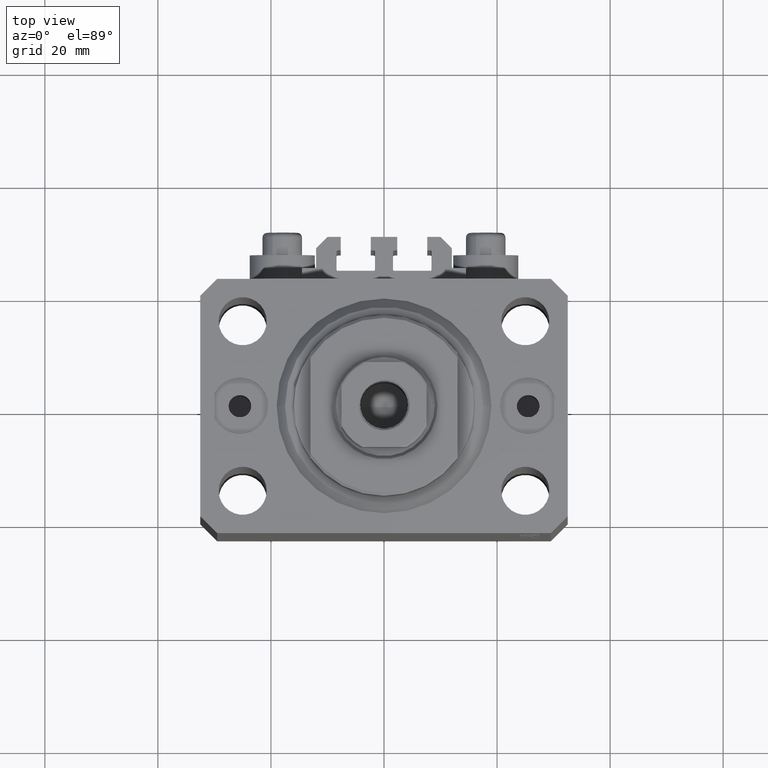
[diagram: clean part render]
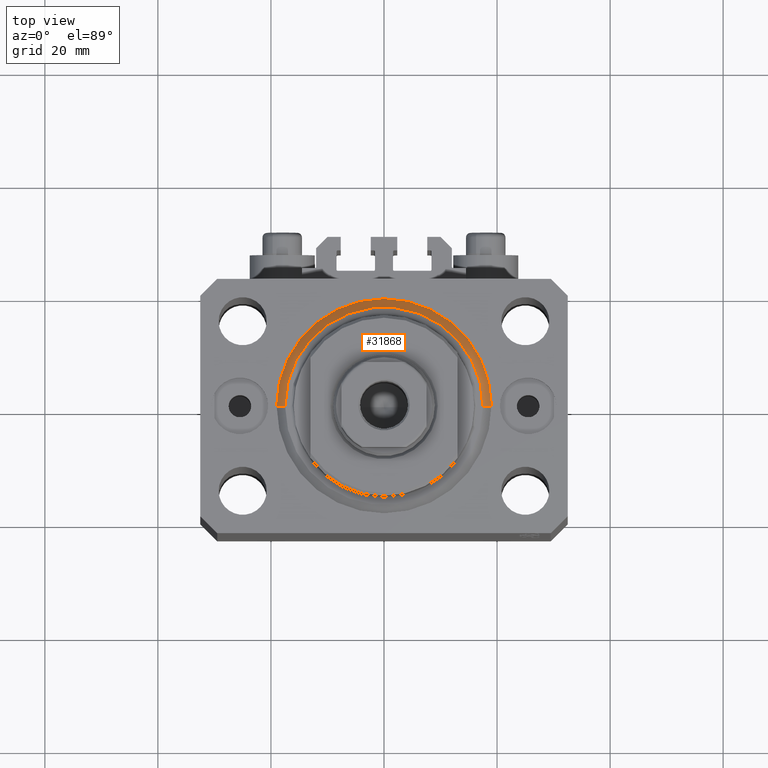
[diagram: same view with one face highlighted and labeled with its STEP entity id]
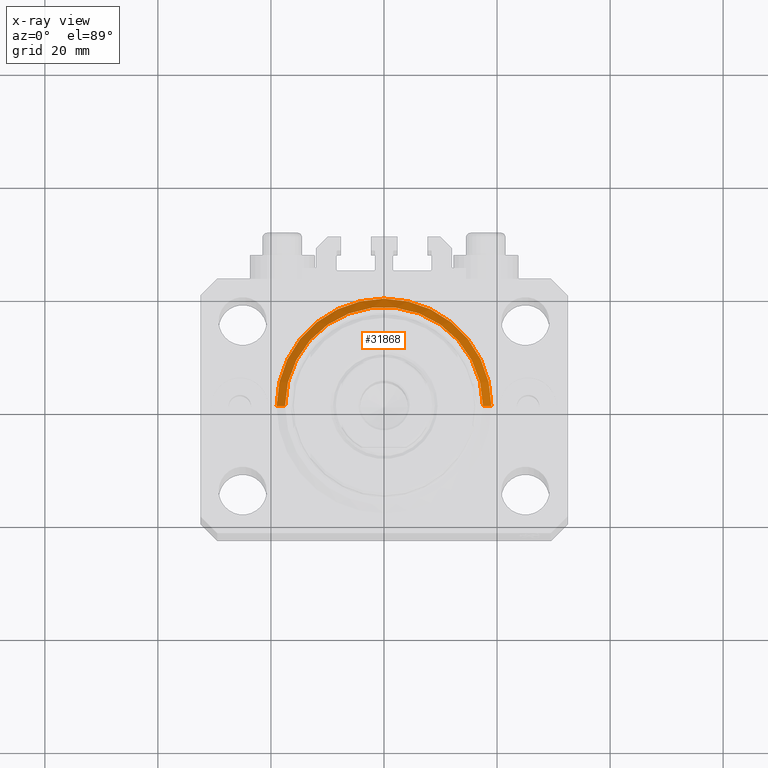
[diagram: x-ray of the same camera — body ghosted, the highlighted face saturated]
A machine part, top view. The second image highlights one B-rep face of the part: STEP entity #31868.
The next image is the same camera in x-ray: the body ghosted, the highlighted face saturated — about 0% of this face is hidden behind the body in this view.
In plain terms, the highlighted conical surface has half-angle 45 deg.
Its self-contained STEP definition (entity closure, byte-faithful):
#63 = CARTESIAN_POINT ( 'NONE',  ( 19.00000000000000000, 0.000000000000000000, 1.500000000000004885 ) ) ;
#993 = DIRECTION ( 'NONE',  ( -0.000000000000000000, -0.000000000000000000, 1.000000000000000000 ) ) ;
#2551 = CARTESIAN_POINT ( 'NONE',  ( 0.000000000000000000, 0.000000000000000000, 1.500000000000004885 ) ) ;
#3246 = DIRECTION ( 'NONE',  ( 1.000000000000000000, 0.000000000000000000, 0.000000000000000000 ) ) ;
#3718 = CARTESIAN_POINT ( 'NONE',  ( -19.00000000000000000, 0.000000000000000000, 1.500000000000004885 ) ) ;
#4582 = DIRECTION ( 'NONE',  ( 1.000000000000000000, 0.000000000000000000, 0.000000000000000000 ) ) ;
#6069 = ORIENTED_EDGE ( 'NONE', *, *, #34798, .F. ) ;
#6439 = EDGE_LOOP ( 'NONE', ( #16779, #44709, #6069, #9858 ) ) ;
#7074 = DIRECTION ( 'NONE',  ( -0.000000000000000000, -0.000000000000000000, -1.000000000000000000 ) ) ;
#9154 = CIRCLE ( 'NONE', #12870, 17.49999999999999289 ) ;
#9315 = CARTESIAN_POINT ( 'NONE',  ( 0.000000000000000000, 0.000000000000000000, 1.500000000000004885 ) ) ;
#9353 = DIRECTION ( 'NONE',  ( -0.7071067811865483499, 8.659560562354943952E-17, 0.7071067811865467956 ) ) ;
#9723 = DIRECTION ( 'NONE',  ( 1.000000000000000000, 0.000000000000000000, 0.000000000000000000 ) ) ;
#9858 = ORIENTED_EDGE ( 'NONE', *, *, #29315, .F. ) ;
#10013 = CONICAL_SURFACE ( 'NONE', #19204, 19.00000000000000000, 0.7853981633974492782 ) ;
#11651 = AXIS2_PLACEMENT_3D ( 'NONE', #9315, #993, #4582 ) ;
#12870 = AXIS2_PLACEMENT_3D ( 'NONE', #21860, #7074, #3246 ) ;
#15354 = CARTESIAN_POINT ( 'NONE',  ( 17.49999999999999289, 0.000000000000000000, 0.000000000000000000 ) ) ;
#16039 = VECTOR ( 'NONE', #29163, 1000.000000000000000 ) ;
#16740 = LINE ( 'NONE', #37580, #38315 ) ;
#16779 = ORIENTED_EDGE ( 'NONE', *, *, #24541, .F. ) ;
#19204 = AXIS2_PLACEMENT_3D ( 'NONE', #2551, #41704, #9723 ) ;
#19663 = CARTESIAN_POINT ( 'NONE',  ( -17.49999999999999289, 2.234980408443919215E-15, 0.000000000000000000 ) ) ;
#21135 = VERTEX_POINT ( 'NONE', #23148 ) ;
#21860 = CARTESIAN_POINT ( 'NONE',  ( 0.000000000000000000, 0.000000000000000000, 0.000000000000000000 ) ) ;
#23148 = CARTESIAN_POINT ( 'NONE',  ( 19.00000000000000000, 2.326828918379970970E-15, 1.500000000000004885 ) ) ;
#23595 = FACE_OUTER_BOUND ( 'NONE', #6439, .T. ) ;
#24541 = EDGE_CURVE ( 'NONE', #25869, #33397, #9154, .T. ) ;
#25869 = VERTEX_POINT ( 'NONE', #19663 ) ;
#29163 = DIRECTION ( 'NONE',  ( 0.7071067811865483499, 0.000000000000000000, 0.7071067811865467956 ) ) ;
#29315 = EDGE_CURVE ( 'NONE', #33397, #21135, #33714, .T. ) ;
#31868 = ADVANCED_FACE ( 'NONE', ( #23595 ), #10013, .T. ) ;
#33397 = VERTEX_POINT ( 'NONE', #15354 ) ;
#33714 = LINE ( 'NONE', #63, #16039 ) ;
#33739 = CIRCLE ( 'NONE', #11651, 19.00000000000000000 ) ;
#34798 = EDGE_CURVE ( 'NONE', #21135, #44451, #33739, .T. ) ;
#37580 = CARTESIAN_POINT ( 'NONE',  ( -19.00000000000000000, 2.326828918379970970E-15, 1.500000000000004885 ) ) ;
#38315 = VECTOR ( 'NONE', #9353, 1000.000000000000000 ) ;
#39910 = EDGE_CURVE ( 'NONE', #25869, #44451, #16740, .T. ) ;
#41704 = DIRECTION ( 'NONE',  ( -0.000000000000000000, -0.000000000000000000, 1.000000000000000000 ) ) ;
#44451 = VERTEX_POINT ( 'NONE', #3718 ) ;
#44709 = ORIENTED_EDGE ( 'NONE', *, *, #39910, .T. ) ;